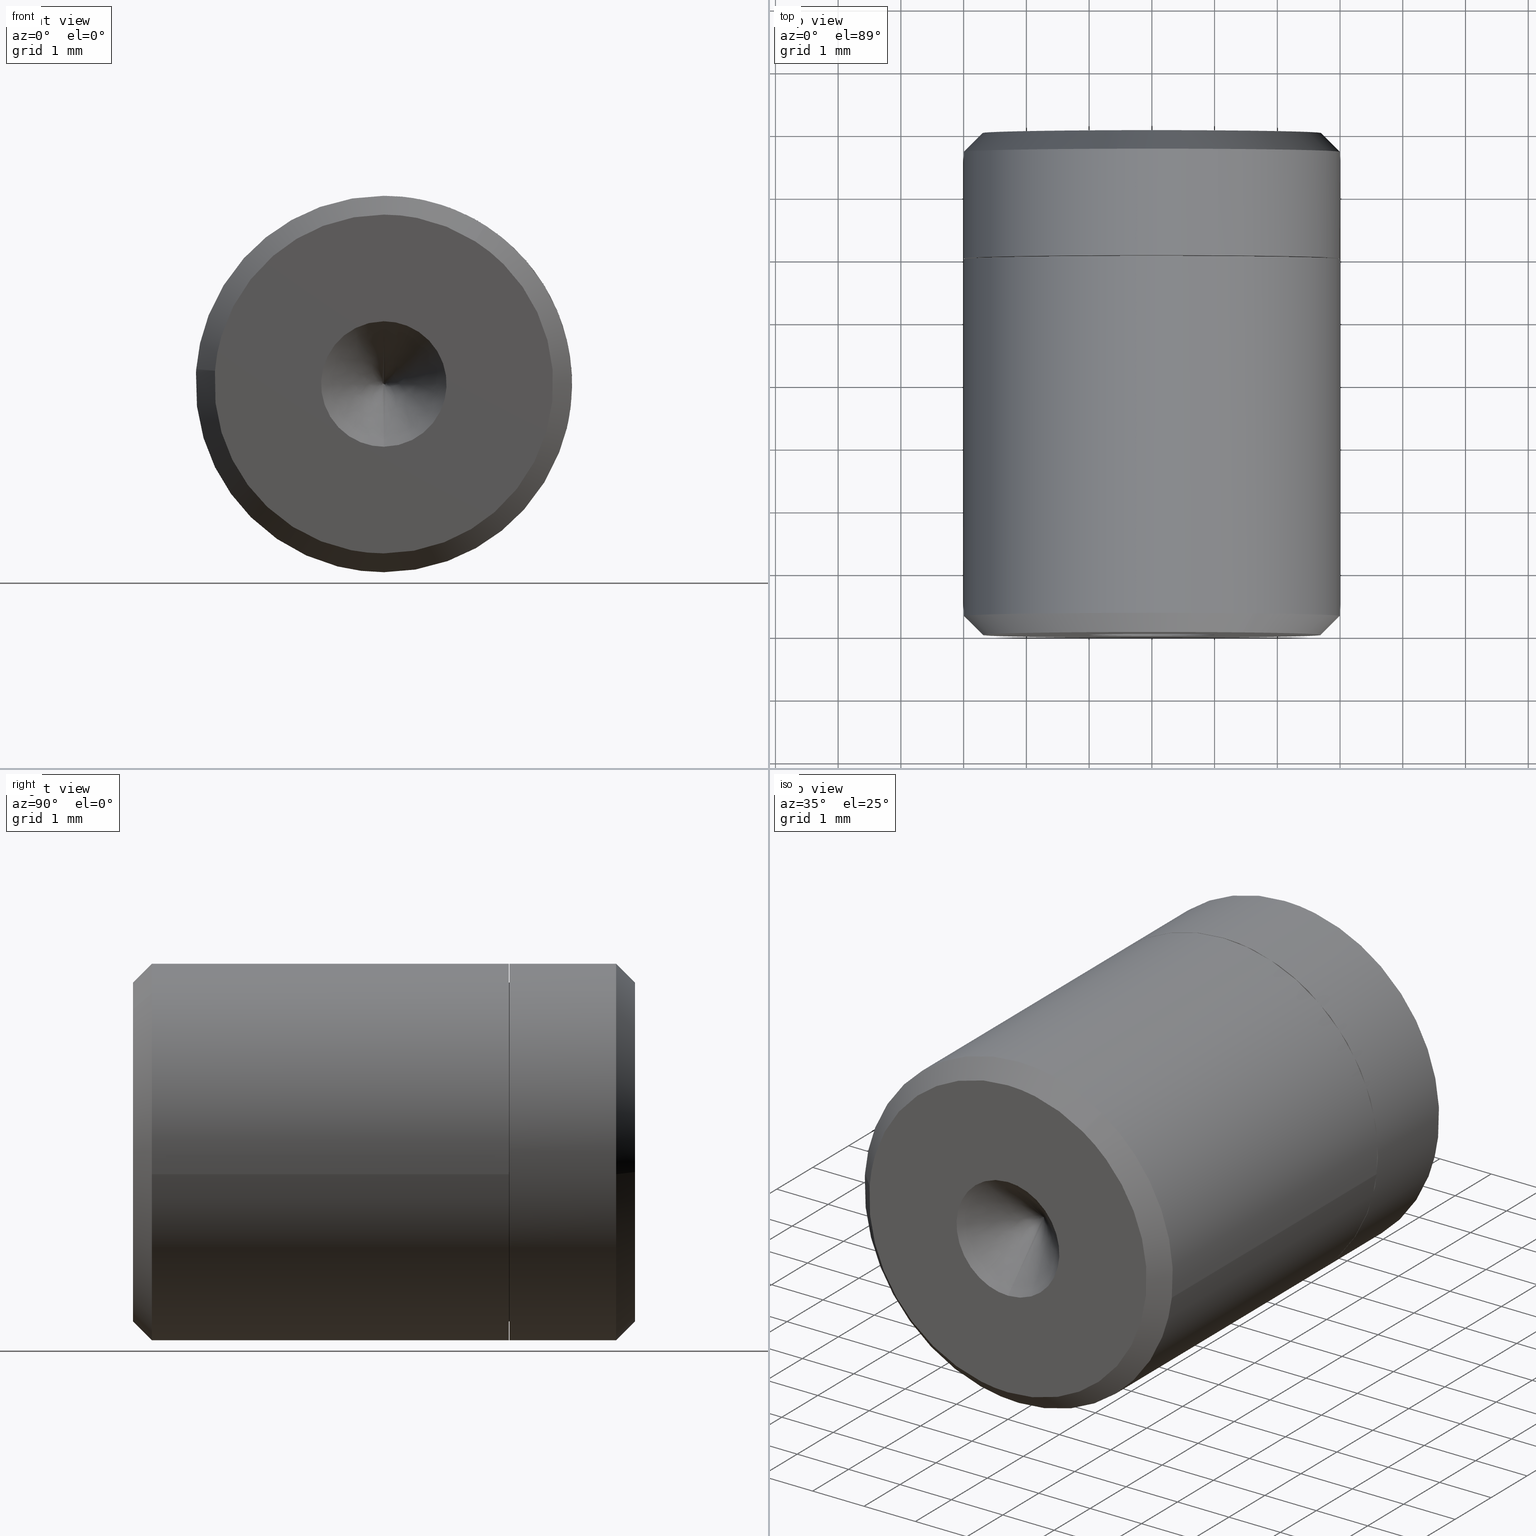
[diagram: canonical four-view strip — front | top / right | iso, engineering-drawing reading convention]
A machine part, canonical four-view strip (front | top / right | iso — engineering-drawing reading convention). The complete STEP part file that produces these views, byte-faithful:
ISO-10303-21;
HEADER;
/****************************************************************
 * Generated by software with PDE/Lib inside                    *
 * PDElib Version 4.4.1-0003, patched  Thursday August 19 11:58 *
 * International Technegroup Inc. (www.iti-oh.com)              *
 ****************************************************************/
FILE_DESCRIPTION((''),'2;1');
FILE_NAME('','2005-07-15T10:19:26',(''),(''),'','CADfix','');
FILE_SCHEMA(('AUTOMOTIVE_DESIGN'));
ENDSEC;
DATA;
#5=APPLICATION_CONTEXT('automotive design');
#6=APPLICATION_PROTOCOL_DEFINITION('Draft International Standard','automotive_design',1998,#5);
#7=PRODUCT_CONTEXT('None',#5,'mechanical');
#8=PRODUCT('body','','None',(#7));
#9=PRODUCT_RELATED_PRODUCT_CATEGORY('part','description',(#8));
#10=PRODUCT_DEFINITION_FORMATION('None','None',#8);
#11=PRODUCT_DEFINITION_CONTEXT('part definition',#5,'design');
#12=PRODUCT_DEFINITION('None','None',#10,#11);
#18=(NAMED_UNIT(*)PLANE_ANGLE_UNIT()SI_UNIT($,.RADIAN.));
#19=DIMENSIONAL_EXPONENTS(0.0,0.0,0.0,0.0,0.0,0.0,0.0);
#20=PLANE_ANGLE_MEASURE_WITH_UNIT(PLANE_ANGLE_MEASURE(0.017453292500000),#18);
#24=(CONVERSION_BASED_UNIT('DEGREE',#20)NAMED_UNIT(#19)PLANE_ANGLE_UNIT());
#28=(NAMED_UNIT(*)SI_UNIT($,.STERADIAN.)SOLID_ANGLE_UNIT());
#32=(LENGTH_UNIT()NAMED_UNIT(*)SI_UNIT(.MILLI.,.METRE.));
#34=UNCERTAINTY_MEASURE_WITH_UNIT(LENGTH_MEASURE(0.001000000000000),#32,'DISTANCE_ACCURACY_VALUE','');
#36=(GEOMETRIC_REPRESENTATION_CONTEXT(3)GLOBAL_UNCERTAINTY_ASSIGNED_CONTEXT((#34))GLOBAL_UNIT_ASSIGNED_CONTEXT((#24,#28,#32))REPRESENTATION_CONTEXT('None','None'));
#37=AXIS2_PLACEMENT_3D('',#38,#39,#40);
#38=CARTESIAN_POINT('',(0.0,0.0,0.0));
#39=DIRECTION('',(0.0,0.0,1.0));
#40=DIRECTION('',(1.0,0.0,0.0));
#41=ADVANCED_BREP_SHAPE_REPRESENTATION('',(#37,#1057),#36);
#42=PRODUCT_DEFINITION_SHAPE('','',#12);
#43=SHAPE_DEFINITION_REPRESENTATION(#42,#41);
#44=CARTESIAN_POINT('',(1.054853923174716,7.742505125000001,2.808430736329969));
#45=CARTESIAN_POINT('',(0.632968355146225,7.742505125000001,2.966892058095449));
#46=CARTESIAN_POINT('',(0.183145618604571,7.742505125000000,2.994404395265597));
#47=CARTESIAN_POINT('',(-2.811258776661029,7.742505124999999,3.177550013870170));
#48=CARTESIAN_POINT('',(-2.994404395265600,7.742505125000000,0.183145618604568));
#49=CARTESIAN_POINT('',(1.054853923174716,5.956437371874999,2.808430736329969));
#50=CARTESIAN_POINT('',(0.632968355146225,5.956437371874999,2.966892058095449));
#51=CARTESIAN_POINT('',(0.183145618604571,5.956437371874999,2.994404395265597));
#52=CARTESIAN_POINT('',(-2.811258776661029,5.956437371875000,3.177550013870170));
#53=CARTESIAN_POINT('',(-2.994404395265600,5.956437371874999,0.183145618604568));
#61=(BOUNDED_SURFACE()B_SPLINE_SURFACE(2,1,((#44,#49),(#45,#50),(#46,#51),(#47,#52),(#48,#53)),.UNSPECIFIED.,.F.,.F.,.U.)B_SPLINE_SURFACE_WITH_KNOTS((3,2,3),(2,2),(0.0,0.994112549695428,5.964675298172567),(0.0,1.0),.UNSPECIFIED.)GEOMETRIC_REPRESENTATION_ITEM()RATIONAL_B_SPLINE_SURFACE(((0.906274169979695,0.906274169979695),(0.941421356237309,0.941421356237309),(1.0,1.0),(0.707106781186548,0.707106781186548),(1.0,1.0)))REPRESENTATION_ITEM('')SURFACE());
#62=CARTESIAN_POINT('',(1.054852533849337,7.700004999999996,2.808431258163427));
#63=VERTEX_POINT('',#62);
#64=CARTESIAN_POINT('',(0.0,7.700005000000000,2.999999999999997));
#65=VERTEX_POINT('',#64);
#66=CARTESIAN_POINT('',(1.054852533849337,7.700004999999996,2.808431258163427));
#67=CARTESIAN_POINT('',(0.544821391679655,7.700005000000000,2.999999999999997));
#68=CARTESIAN_POINT('',(0.0,7.700005000000000,2.999999999999997));
#76=(BOUNDED_CURVE()B_SPLINE_CURVE(2,(#66,#67,#68),.UNSPECIFIED.,.F.,.U.)B_SPLINE_CURVE_WITH_KNOTS((3,3),(0.440284249036416,0.500000000000000),.UNSPECIFIED.)CURVE()GEOMETRIC_REPRESENTATION_ITEM()RATIONAL_B_SPLINE_CURVE((0.893499650257582,0.930038645945653,1.0))REPRESENTATION_ITEM(''));
#77=EDGE_CURVE('',#63,#65,#76,.T.);
#78=ORIENTED_EDGE('',*,*,#77,.T.);
#79=CARTESIAN_POINT('',(-2.994404395265843,7.700004999999138,0.183145618607985));
#80=VERTEX_POINT('',#79);
#81=CARTESIAN_POINT('',(0.0,7.700005000000000,2.999999999999997));
#82=CARTESIAN_POINT('',(-2.822118200704293,7.700004999999998,2.999999999999998));
#83=CARTESIAN_POINT('',(-2.994404395265843,7.700004999999138,0.183145618607985));
#91=(BOUNDED_CURVE()B_SPLINE_CURVE(2,(#81,#82,#83),.UNSPECIFIED.,.F.,.U.)B_SPLINE_CURVE_WITH_KNOTS((3,3),(0.500000000000000,0.739332962241188),.UNSPECIFIED.)CURVE()GEOMETRIC_REPRESENTATION_ITEM()RATIONAL_B_SPLINE_CURVE((1.0,0.719603993284080,0.976072041671529))REPRESENTATION_ITEM(''));
#92=EDGE_CURVE('',#65,#80,#91,.T.);
#93=ORIENTED_EDGE('',*,*,#92,.T.);
#94=CARTESIAN_POINT('',(-2.994404536972982,6.0,0.183143301679935));
#95=VERTEX_POINT('',#94);
#96=CARTESIAN_POINT('',(-2.994404395265843,7.700004999999138,0.183145618607985));
#97=CARTESIAN_POINT('',(-2.994404536972982,6.0,0.183143301679935));
#98=QUASI_UNIFORM_CURVE('',1,(#96,#97),.UNSPECIFIED.,.F.,.U.);
#99=EDGE_CURVE('',#80,#95,#98,.T.);
#100=ORIENTED_EDGE('',*,*,#99,.T.);
#101=CARTESIAN_POINT('',(0.0,6.0,2.999999999999997));
#102=VERTEX_POINT('',#101);
#103=CARTESIAN_POINT('',(0.0,6.0,2.999999999999997));
#104=CARTESIAN_POINT('',(-2.822120388416223,6.000000000000001,2.999999999999999));
#105=CARTESIAN_POINT('',(-2.994404536972982,5.999999999999999,0.183143301679935));
#113=(BOUNDED_CURVE()B_SPLINE_CURVE(2,(#103,#104,#105),.UNSPECIFIED.,.F.,.U.)B_SPLINE_CURVE_WITH_KNOTS((3,3),(0.500000000000000,0.739333095750304),.UNSPECIFIED.)CURVE()GEOMETRIC_REPRESENTATION_ITEM()RATIONAL_B_SPLINE_CURVE((1.0,0.719603836868421,0.976072327807147))REPRESENTATION_ITEM(''));
#114=EDGE_CURVE('',#102,#95,#113,.T.);
#115=ORIENTED_EDGE('',*,*,#114,.F.);
#116=CARTESIAN_POINT('',(1.054852924770753,6.0,2.808431111332702));
#117=VERTEX_POINT('',#116);
#118=CARTESIAN_POINT('',(1.054852924770753,6.0,2.808431111332702));
#119=CARTESIAN_POINT('',(0.544821607359354,6.0,2.999999999999997));
#120=CARTESIAN_POINT('',(0.0,6.0,2.999999999999997));
#128=(BOUNDED_CURVE()B_SPLINE_CURVE(2,(#118,#119,#120),.UNSPECIFIED.,.F.,.U.)B_SPLINE_CURVE_WITH_KNOTS((3,3),(0.440284227050477,0.500000000000000),.UNSPECIFIED.)CURVE()GEOMETRIC_REPRESENTATION_ITEM()RATIONAL_B_SPLINE_CURVE((0.893499623351985,0.930038620187524,1.0))REPRESENTATION_ITEM(''));
#129=EDGE_CURVE('',#117,#102,#128,.T.);
#130=ORIENTED_EDGE('',*,*,#129,.F.);
#131=CARTESIAN_POINT('',(1.054852533849337,7.700004999999996,2.808431258163427));
#132=CARTESIAN_POINT('',(1.054852924770753,6.0,2.808431111332702));
#133=QUASI_UNIFORM_CURVE('',1,(#131,#132),.UNSPECIFIED.,.F.,.U.);
#134=EDGE_CURVE('',#63,#117,#133,.T.);
#135=ORIENTED_EDGE('',*,*,#134,.F.);
#136=EDGE_LOOP('',(#78,#93,#100,#115,#130,#135));
#137=FACE_OUTER_BOUND('',#136,.T.);
#138=ADVANCED_FACE('',(#137),#61,.T.);
#139=CARTESIAN_POINT('',(-2.994404395265600,7.742505125000000,0.183145618604568));
#140=CARTESIAN_POINT('',(-3.177550013870171,7.742505124999999,-2.811258776661032));
#141=CARTESIAN_POINT('',(-0.183145618604571,7.742505125000000,-2.994404395265603));
#142=CARTESIAN_POINT('',(2.811258776661029,7.742505124999999,-3.177550013870173));
#143=CARTESIAN_POINT('',(2.994404395265600,7.742505125000000,-0.183145618604573));
#144=CARTESIAN_POINT('',(3.129711668608025,7.742505125000000,2.029108745409193));
#145=CARTESIAN_POINT('',(1.054853923174716,7.742505125000001,2.808430736329969));
#146=CARTESIAN_POINT('',(-2.994404395265600,5.956437371874999,0.183145618604568));
#147=CARTESIAN_POINT('',(-3.177550013870171,5.956437371875000,-2.811258776661032));
#148=CARTESIAN_POINT('',(-0.183145618604571,5.956437371874999,-2.994404395265603));
#149=CARTESIAN_POINT('',(2.811258776661029,5.956437371875000,-3.177550013870173));
#150=CARTESIAN_POINT('',(2.994404395265600,5.956437371874999,-0.183145618604573));
#151=CARTESIAN_POINT('',(3.129711668608025,5.956437371874999,2.029108745409193));
#152=CARTESIAN_POINT('',(1.054853923174716,5.956437371874999,2.808430736329969));
#160=(BOUNDED_SURFACE()B_SPLINE_SURFACE(2,1,((#139,#146),(#140,#147),(#141,#148),(#142,#149),(#143,#150),(#144,#151),(#145,#152)),.UNSPECIFIED.,.F.,.F.,.U.)B_SPLINE_SURFACE_WITH_KNOTS((3,2,2,3),(2,2),(0.0,4.970562748477140,9.941125496954280,13.917575695735991),(0.0,1.0),.UNSPECIFIED.)GEOMETRIC_REPRESENTATION_ITEM()RATIONAL_B_SPLINE_SURFACE(((1.0,1.0),(0.707106781186548,0.707106781186548),(1.0,1.0),(0.707106781186548,0.707106781186548),(1.0,1.0),(0.765685424949238,0.765685424949238),(0.906274169979695,0.906274169979695)))REPRESENTATION_ITEM('')SURFACE());
#161=CARTESIAN_POINT('',(2.979028579091041,7.700004999999360,-0.354102703975353));
#162=VERTEX_POINT('',#161);
#163=CARTESIAN_POINT('',(2.979028579091041,7.700004999999360,-0.354102703975353));
#164=CARTESIAN_POINT('',(3.000000000000000,7.700005000000000,-0.177672358960785));
#165=CARTESIAN_POINT('',(3.0,7.700005000000000,-2.449213E-015));
#166=CARTESIAN_POINT('',(3.0,7.700005000000000,2.077829885096408));
#167=CARTESIAN_POINT('',(1.054852533849337,7.700004999999996,2.808431258163427));
#175=(BOUNDED_CURVE()B_SPLINE_CURVE(2,(#163,#164,#165,#166,#167),.UNSPECIFIED.,.F.,.U.)B_SPLINE_CURVE_WITH_KNOTS((3,2,3),(0.229562473515077,0.250000000000000,0.440284249036416),.UNSPECIFIED.)CURVE()GEOMETRIC_REPRESENTATION_ITEM()RATIONAL_B_SPLINE_CURVE((0.956026754186774,0.976055948332983,1.0,0.777068135240895,0.893499650257582))REPRESENTATION_ITEM(''));
#176=EDGE_CURVE('',#162,#63,#175,.T.);
#177=ORIENTED_EDGE('',*,*,#176,.T.);
#178=ORIENTED_EDGE('',*,*,#134,.T.);
#179=CARTESIAN_POINT('',(0.0,6.0,-3.000000000000003));
#180=VERTEX_POINT('',#179);
#181=CARTESIAN_POINT('',(0.0,6.0,-3.000000000000003));
#182=CARTESIAN_POINT('',(3.0,6.0,-3.000000000000003));
#183=CARTESIAN_POINT('',(3.0,6.0,-2.449213E-015));
#184=CARTESIAN_POINT('',(3.0,6.0,2.077829576142970));
#185=CARTESIAN_POINT('',(1.054852924770753,6.0,2.808431111332702));
#193=(BOUNDED_CURVE()B_SPLINE_CURVE(2,(#181,#182,#183,#184,#185),.UNSPECIFIED.,.F.,.U.)B_SPLINE_CURVE_WITH_KNOTS((3,2,3),(0.0,0.250000000000000,0.440284227050477),.UNSPECIFIED.)CURVE()GEOMETRIC_REPRESENTATION_ITEM()RATIONAL_B_SPLINE_CURVE((1.0,0.707106781186548,1.0,0.777068160999023,0.893499623351985))REPRESENTATION_ITEM(''));
#194=EDGE_CURVE('',#180,#117,#193,.T.);
#195=ORIENTED_EDGE('',*,*,#194,.F.);
#196=CARTESIAN_POINT('',(-2.994404536972982,5.999999999999999,0.183143301679935));
#197=CARTESIAN_POINT('',(-3.000000000000000,6.000000000000001,0.091657128185300));
#198=CARTESIAN_POINT('',(-3.0,6.0,-2.449213E-015));
#199=CARTESIAN_POINT('',(-3.0,6.0,-3.000000000000003));
#200=CARTESIAN_POINT('',(0.0,6.0,-3.000000000000003));
#208=(BOUNDED_CURVE()B_SPLINE_CURVE(2,(#196,#197,#198,#199,#200),.UNSPECIFIED.,.F.,.U.)B_SPLINE_CURVE_WITH_KNOTS((3,2,3),(0.739333095750304,0.750000000000000,1.0),.UNSPECIFIED.)CURVE()GEOMETRIC_REPRESENTATION_ITEM()RATIONAL_B_SPLINE_CURVE((0.976072327807147,0.987502944318127,1.0,0.707106781186548,1.0))REPRESENTATION_ITEM(''));
#209=EDGE_CURVE('',#95,#180,#208,.T.);
#210=ORIENTED_EDGE('',*,*,#209,.F.);
#211=ORIENTED_EDGE('',*,*,#99,.F.);
#212=CARTESIAN_POINT('',(0.0,7.700005000000000,-3.000000000000003));
#213=VERTEX_POINT('',#212);
#214=CARTESIAN_POINT('',(-2.994404395265842,7.700004999999138,0.183145618607985));
#215=CARTESIAN_POINT('',(-3.0,7.700005000000000,0.091658289902562));
#216=CARTESIAN_POINT('',(-3.0,7.700005000000000,-2.449213E-015));
#217=CARTESIAN_POINT('',(-3.0,7.700005000000000,-3.000000000000003));
#218=CARTESIAN_POINT('',(0.0,7.700005000000000,-3.000000000000003));
#226=(BOUNDED_CURVE()B_SPLINE_CURVE(2,(#214,#215,#216,#217,#218),.UNSPECIFIED.,.F.,.U.)B_SPLINE_CURVE_WITH_KNOTS((3,2,3),(0.739332962241187,0.750000000000000,1.0),.UNSPECIFIED.)CURVE()GEOMETRIC_REPRESENTATION_ITEM()RATIONAL_B_SPLINE_CURVE((0.976072041671527,0.987502787902467,1.0,0.707106781186548,1.0))REPRESENTATION_ITEM(''));
#227=EDGE_CURVE('',#80,#213,#226,.T.);
#228=ORIENTED_EDGE('',*,*,#227,.T.);
#229=CARTESIAN_POINT('',(0.0,7.700005000000000,-3.000000000000003));
#230=CARTESIAN_POINT('',(2.664523577845097,7.700004999999999,-3.000000000000003));
#231=CARTESIAN_POINT('',(2.979028579091041,7.700004999999360,-0.354102703975353));
#239=(BOUNDED_CURVE()B_SPLINE_CURVE(2,(#229,#230,#231),.UNSPECIFIED.,.F.,.U.)B_SPLINE_CURVE_WITH_KNOTS((3,3),(0.0,0.229562473515077),.UNSPECIFIED.)CURVE()GEOMETRIC_REPRESENTATION_ITEM()RATIONAL_B_SPLINE_CURVE((1.0,0.731050832853565,0.956026754186774))REPRESENTATION_ITEM(''));
#240=EDGE_CURVE('',#213,#162,#239,.T.);
#241=ORIENTED_EDGE('',*,*,#240,.T.);
#242=EDGE_LOOP('',(#177,#178,#195,#210,#211,#228,#241));
#243=FACE_OUTER_BOUND('',#242,.T.);
#244=ADVANCED_FACE('',(#243),#160,.T.);
#245=CARTESIAN_POINT('',(2.673679167568948,8.007499875000002,-0.317807297798417));
#246=CARTESIAN_POINT('',(2.682774675892689,8.007499875000001,-0.241287748712855));
#247=CARTESIAN_POINT('',(2.687478967839057,8.007499875000001,-0.164373255272359));
#248=CARTESIAN_POINT('',(2.851852223111413,8.007499875000002,2.523105712566699));
#249=CARTESIAN_POINT('',(0.164373255272356,8.007499875000001,2.687478967839054));
#250=CARTESIAN_POINT('',(-2.523105712566701,8.007499875000002,2.851852223111412));
#251=CARTESIAN_POINT('',(-2.687478967839057,8.007499875000001,0.164373255272354));
#252=CARTESIAN_POINT('',(2.986662314379052,7.692317628124998,-0.355010089124575));
#253=CARTESIAN_POINT('',(2.996822550607147,7.692317628124998,-0.269533096843963));
#254=CARTESIAN_POINT('',(3.002077530951266,7.692317628124998,-0.183614927687879));
#255=CARTESIAN_POINT('',(3.185692458639141,7.692317628124998,2.818462603263387));
#256=CARTESIAN_POINT('',(0.183614927687876,7.692317628124998,3.002077530951263));
#257=CARTESIAN_POINT('',(-2.818462603263390,7.692317628124998,3.185692458639140));
#258=CARTESIAN_POINT('',(-3.002077530951266,7.692317628124998,0.183614927687874));
#266=(BOUNDED_SURFACE()B_SPLINE_SURFACE(2,1,((#245,#252),(#246,#253),(#247,#254),(#248,#255),(#249,#256),(#250,#257),(#251,#258)),.UNSPECIFIED.,.F.,.F.,.U.)B_SPLINE_SURFACE_WITH_KNOTS((3,2,2,3),(2,2),(0.0,0.199331990922529,5.182631763985754,10.165931537048980),(0.0,0.445737979775999),.UNSPECIFIED.)GEOMETRIC_REPRESENTATION_ITEM()RATIONAL_B_SPLINE_SURFACE(((0.977505800795127,0.977505800795127),(0.988284271247462,0.988284271247462),(1.0,1.0),(0.707106781186548,0.707106781186548),(1.0,1.0),(0.707106781186548,0.707106781186548),(1.0,1.0)))REPRESENTATION_ITEM('')SURFACE());
#267=ORIENTED_EDGE('',*,*,#176,.F.);
#268=CARTESIAN_POINT('',(2.681126714191450,7.999999999999664,-0.318692551610173));
#269=VERTEX_POINT('',#268);
#270=CARTESIAN_POINT('',(2.681126714191450,7.999999999999664,-0.318692551610173));
#271=CARTESIAN_POINT('',(2.979028579091041,7.700004999999360,-0.354102703975353));
#272=QUASI_UNIFORM_CURVE('',1,(#270,#271),.UNSPECIFIED.,.F.,.U.);
#273=EDGE_CURVE('',#269,#162,#272,.T.);
#274=ORIENTED_EDGE('',*,*,#273,.F.);
#275=CARTESIAN_POINT('',(0.0,8.0,2.700000999999998));
#276=VERTEX_POINT('',#275);
#277=CARTESIAN_POINT('',(2.681126714191450,7.999999999999664,-0.318692551610173));
#278=CARTESIAN_POINT('',(2.700001000000000,8.0,-0.159905182286955));
#279=CARTESIAN_POINT('',(2.700001000000000,8.0,-2.449213E-015));
#280=CARTESIAN_POINT('',(2.700001000000000,8.0,2.700000999999998));
#281=CARTESIAN_POINT('',(0.0,8.0,2.700000999999998));
#289=(BOUNDED_CURVE()B_SPLINE_CURVE(2,(#277,#278,#279,#280,#281),.UNSPECIFIED.,.F.,.U.)B_SPLINE_CURVE_WITH_KNOTS((3,2,3),(0.229562473515311,0.250000000000000,0.500000000000000),.UNSPECIFIED.)CURVE()GEOMETRIC_REPRESENTATION_ITEM()RATIONAL_B_SPLINE_CURVE((0.956026754187232,0.976055948333256,1.0,0.707106781186548,1.0))REPRESENTATION_ITEM(''));
#290=EDGE_CURVE('',#269,#276,#289,.T.);
#291=ORIENTED_EDGE('',*,*,#290,.T.);
#292=CARTESIAN_POINT('',(-2.694964841242808,8.000000118294054,0.164831021563064));
#293=VERTEX_POINT('',#292);
#294=CARTESIAN_POINT('',(0.0,8.0,2.700000999999998));
#295=CARTESIAN_POINT('',(-2.539907489438265,8.0,2.700000999999997));
#296=CARTESIAN_POINT('',(-2.694964841242809,8.000000118294054,0.164831021563064));
#304=(BOUNDED_CURVE()B_SPLINE_CURVE(2,(#294,#295,#296),.UNSPECIFIED.,.F.,.U.)B_SPLINE_CURVE_WITH_KNOTS((3,3),(0.500000000000000,0.739332973639528),.UNSPECIFIED.)CURVE()GEOMETRIC_REPRESENTATION_ITEM()RATIONAL_B_SPLINE_CURVE((1.0,0.719603979930094,0.976072066100343))REPRESENTATION_ITEM(''));
#305=EDGE_CURVE('',#276,#293,#304,.T.);
#306=ORIENTED_EDGE('',*,*,#305,.T.);
#307=CARTESIAN_POINT('',(-2.694964841242808,8.000000118294054,0.164831021563064));
#308=CARTESIAN_POINT('',(-2.994404395265843,7.700004999999138,0.183145618607985));
#309=QUASI_UNIFORM_CURVE('',1,(#307,#308),.UNSPECIFIED.,.F.,.U.);
#310=EDGE_CURVE('',#293,#80,#309,.T.);
#311=ORIENTED_EDGE('',*,*,#310,.T.);
#312=ORIENTED_EDGE('',*,*,#92,.F.);
#313=ORIENTED_EDGE('',*,*,#77,.F.);
#314=EDGE_LOOP('',(#267,#274,#291,#306,#311,#312,#313));
#315=FACE_OUTER_BOUND('',#314,.T.);
#316=ADVANCED_FACE('',(#315),#266,.T.);
#317=CARTESIAN_POINT('',(-2.687478967839057,8.007499875000001,0.164373255272354));
#318=CARTESIAN_POINT('',(-2.851852223111413,8.007499875000002,-2.523105712566703));
#319=CARTESIAN_POINT('',(-0.164373255272356,8.007499875000001,-2.687478967839060));
#320=CARTESIAN_POINT('',(2.373556752667446,8.007499874999999,-2.842705416883197));
#321=CARTESIAN_POINT('',(2.673679167568948,8.007499875000002,-0.317807297798417));
#322=CARTESIAN_POINT('',(-3.002077530951266,7.692317628124998,0.183614927687874));
#323=CARTESIAN_POINT('',(-3.185692458639141,7.692317628124998,-2.818462603263391));
#324=CARTESIAN_POINT('',(-0.183614927687876,7.692317628124998,-3.002077530951268));
#325=CARTESIAN_POINT('',(2.651407315514781,7.692317628124999,-3.175474919530447));
#326=CARTESIAN_POINT('',(2.986662314379052,7.692317628124998,-0.355010089124575));
#334=(BOUNDED_SURFACE()B_SPLINE_SURFACE(2,1,((#317,#322),(#318,#323),(#319,#324),(#320,#325),(#321,#326)),.UNSPECIFIED.,.F.,.F.,.U.)B_SPLINE_SURFACE_WITH_KNOTS((3,2,3),(2,2),(0.0,4.983299773063225,9.767267555203921),(0.0,0.445737979775999),.UNSPECIFIED.)GEOMETRIC_REPRESENTATION_ITEM()RATIONAL_B_SPLINE_SURFACE(((1.0,1.0),(0.707106781186548,0.707106781186548),(1.0,1.0),(0.718822509939086,0.718822509939086),(0.977505800795127,0.977505800795127)))REPRESENTATION_ITEM('')SURFACE());
#335=ORIENTED_EDGE('',*,*,#240,.F.);
#336=ORIENTED_EDGE('',*,*,#227,.F.);
#337=ORIENTED_EDGE('',*,*,#310,.F.);
#338=CARTESIAN_POINT('',(0.0,8.0,-2.700001000000003));
#339=VERTEX_POINT('',#338);
#340=CARTESIAN_POINT('',(-2.694964841242808,8.000000118294054,0.164831021563064));
#341=CARTESIAN_POINT('',(-2.700000999999999,8.000000000000002,0.082492402201570));
#342=CARTESIAN_POINT('',(-2.700001000000000,8.0,-2.449213E-015));
#343=CARTESIAN_POINT('',(-2.700001000000000,8.0,-2.700001000000003));
#344=CARTESIAN_POINT('',(0.0,8.0,-2.700001000000003));
#352=(BOUNDED_CURVE()B_SPLINE_CURVE(2,(#340,#341,#342,#343,#344),.UNSPECIFIED.,.F.,.U.)B_SPLINE_CURVE_WITH_KNOTS((3,2,3),(0.739332973639528,0.750000000000000,1.0),.UNSPECIFIED.)CURVE()GEOMETRIC_REPRESENTATION_ITEM()RATIONAL_B_SPLINE_CURVE((0.976072066100344,0.987502801256454,1.0,0.707106781186548,1.0))REPRESENTATION_ITEM(''));
#353=EDGE_CURVE('',#293,#339,#352,.T.);
#354=ORIENTED_EDGE('',*,*,#353,.T.);
#355=CARTESIAN_POINT('',(0.0,8.0,-2.700001000000003));
#356=CARTESIAN_POINT('',(2.398072108238451,8.0,-2.700001000000003));
#357=CARTESIAN_POINT('',(2.681126714191450,7.999999999999664,-0.318692551610173));
#365=(BOUNDED_CURVE()B_SPLINE_CURVE(2,(#355,#356,#357),.UNSPECIFIED.,.F.,.U.)B_SPLINE_CURVE_WITH_KNOTS((3,3),(0.0,0.229562473515311),.UNSPECIFIED.)CURVE()GEOMETRIC_REPRESENTATION_ITEM()RATIONAL_B_SPLINE_CURVE((1.0,0.731050832853291,0.956026754187232))REPRESENTATION_ITEM(''));
#366=EDGE_CURVE('',#339,#269,#365,.T.);
#367=ORIENTED_EDGE('',*,*,#366,.T.);
#368=ORIENTED_EDGE('',*,*,#273,.T.);
#369=EDGE_LOOP('',(#335,#336,#337,#354,#367,#368));
#370=FACE_OUTER_BOUND('',#369,.T.);
#371=ADVANCED_FACE('',(#370),#334,.T.);
#372=CARTESIAN_POINT('',(2.681126714191425,6.000250000000002,-0.318692551607485));
#373=CARTESIAN_POINT('',(2.690247558098850,6.000250000000002,-0.241959856937271));
#374=CARTESIAN_POINT('',(2.694964953873838,6.000250000000001,-0.164831117792656));
#375=CARTESIAN_POINT('',(2.859796071666491,6.000250000000001,2.530133836081183));
#376=CARTESIAN_POINT('',(0.164831117792653,6.000250000000001,2.694964953873836));
#377=CARTESIAN_POINT('',(-2.530133836081185,6.000250000000001,2.859796071666490));
#378=CARTESIAN_POINT('',(-2.694964953873838,6.000250000000001,0.164831117792651));
#379=CARTESIAN_POINT('',(2.681126714191425,5.989743750000000,-0.318692551607485));
#380=CARTESIAN_POINT('',(2.690247558098850,5.989743750000000,-0.241959856937271));
#381=CARTESIAN_POINT('',(2.694964953873838,5.989743749999999,-0.164831117792656));
#382=CARTESIAN_POINT('',(2.859796071666491,5.989743749999999,2.530133836081183));
#383=CARTESIAN_POINT('',(0.164831117792653,5.989743749999999,2.694964953873836));
#384=CARTESIAN_POINT('',(-2.530133836081185,5.989743749999999,2.859796071666490));
#385=CARTESIAN_POINT('',(-2.694964953873838,5.989743749999999,0.164831117792651));
#393=(BOUNDED_SURFACE()B_SPLINE_SURFACE(2,1,((#372,#379),(#373,#380),(#374,#381),(#375,#382),(#376,#383),(#377,#384),(#378,#385)),.UNSPECIFIED.,.F.,.F.,.U.)B_SPLINE_SURFACE_WITH_KNOTS((3,2,2,3),(2,2),(0.0,0.178940325219347,4.652448455703022,9.125956586186698),(0.0,0.010506250000003),.UNSPECIFIED.)GEOMETRIC_REPRESENTATION_ITEM()RATIONAL_B_SPLINE_SURFACE(((0.977505800795127,0.977505800795127),(0.988284271247462,0.988284271247462),(1.0,1.0),(0.707106781186548,0.707106781186548),(1.0,1.0),(0.707106781186548,0.707106781186548),(1.0,1.0)))REPRESENTATION_ITEM('')SURFACE());
#394=CARTESIAN_POINT('',(2.681126876235128,5.999999999998943,-0.318691188345044));
#395=VERTEX_POINT('',#394);
#396=CARTESIAN_POINT('',(0.0,6.0,2.700000999999998));
#397=VERTEX_POINT('',#396);
#398=CARTESIAN_POINT('',(2.681126876235129,5.999999999998943,-0.318691188345044));
#399=CARTESIAN_POINT('',(2.700001000000000,6.0,-0.159904493446993));
#400=CARTESIAN_POINT('',(2.700001000000000,6.0,-2.449213E-015));
#401=CARTESIAN_POINT('',(2.700001000000000,6.0,2.700000999999998));
#402=CARTESIAN_POINT('',(0.0,6.0,2.700000999999998));
#410=(BOUNDED_CURVE()B_SPLINE_CURVE(2,(#398,#399,#400,#401,#402),.UNSPECIFIED.,.F.,.U.)B_SPLINE_CURVE_WITH_KNOTS((3,2,3),(0.229562559448095,0.250000000000000,0.500000000000000),.UNSPECIFIED.)CURVE()GEOMETRIC_REPRESENTATION_ITEM()RATIONAL_B_SPLINE_CURVE((0.956026922619075,0.976056049009776,1.0,0.707106781186548,1.0))REPRESENTATION_ITEM(''));
#411=EDGE_CURVE('',#395,#397,#410,.T.);
#412=ORIENTED_EDGE('',*,*,#411,.T.);
#413=CARTESIAN_POINT('',(-2.694964959406256,5.999999999999994,0.164831027338374));
#414=VERTEX_POINT('',#413);
#415=CARTESIAN_POINT('',(0.0,6.0,2.700000999999998));
#416=CARTESIAN_POINT('',(-2.539907492169861,6.000000000000001,2.700000999999997));
#417=CARTESIAN_POINT('',(-2.694964959406256,5.999999999999994,0.164831027338374));
#425=(BOUNDED_CURVE()B_SPLINE_CURVE(2,(#415,#416,#417),.UNSPECIFIED.,.F.,.U.)B_SPLINE_CURVE_WITH_KNOTS((3,3),(0.500000000000000,0.739332973824751),.UNSPECIFIED.)CURVE()GEOMETRIC_REPRESENTATION_ITEM()RATIONAL_B_SPLINE_CURVE((1.0,0.719603979713092,0.976072066497311))REPRESENTATION_ITEM(''));
#426=EDGE_CURVE('',#397,#414,#425,.T.);
#427=ORIENTED_EDGE('',*,*,#426,.T.);
#428=CARTESIAN_POINT('',(-2.694964959339676,5.989999999999999,0.164831028426948));
#429=VERTEX_POINT('',#428);
#430=CARTESIAN_POINT('',(-2.694964959406256,5.999999999999994,0.164831027338374));
#431=CARTESIAN_POINT('',(-2.694964959339676,5.989999999999999,0.164831028426948));
#432=QUASI_UNIFORM_CURVE('',1,(#430,#431),.UNSPECIFIED.,.F.,.U.);
#433=EDGE_CURVE('',#414,#429,#432,.T.);
#434=ORIENTED_EDGE('',*,*,#433,.T.);
#435=CARTESIAN_POINT('',(0.0,5.989999999999999,2.700000999999998));
#436=VERTEX_POINT('',#435);
#437=CARTESIAN_POINT('',(0.0,5.989999999999999,2.700000999999998));
#438=CARTESIAN_POINT('',(-2.539907490114115,5.989999999999998,2.700000999999998));
#439=CARTESIAN_POINT('',(-2.694964959339677,5.989999999999999,0.164831028426948));
#447=(BOUNDED_CURVE()B_SPLINE_CURVE(2,(#437,#438,#439),.UNSPECIFIED.,.F.,.U.)B_SPLINE_CURVE_WITH_KNOTS((3,3),(0.500000000000000,0.739332973685356),.UNSPECIFIED.)CURVE()GEOMETRIC_REPRESENTATION_ITEM()RATIONAL_B_SPLINE_CURVE((1.0,0.719603979876404,0.976072066198560))REPRESENTATION_ITEM(''));
#448=EDGE_CURVE('',#436,#429,#447,.T.);
#449=ORIENTED_EDGE('',*,*,#448,.F.);
#450=CARTESIAN_POINT('',(2.681126874284161,5.989999999999998,-0.318691204758466));
#451=VERTEX_POINT('',#450);
#452=CARTESIAN_POINT('',(2.681126874284162,5.989999999999998,-0.318691204758466));
#453=CARTESIAN_POINT('',(2.700001000000000,5.989999999999999,-0.159904501740463));
#454=CARTESIAN_POINT('',(2.700001000000000,5.989999999999999,-2.449213E-015));
#455=CARTESIAN_POINT('',(2.700001000000000,5.989999999999998,2.700000999999998));
#456=CARTESIAN_POINT('',(0.0,5.989999999999999,2.700000999999998));
#464=(BOUNDED_CURVE()B_SPLINE_CURVE(2,(#452,#453,#454,#455,#456),.UNSPECIFIED.,.F.,.U.)B_SPLINE_CURVE_WITH_KNOTS((3,2,3),(0.229562558413485,0.250000000000000,0.500000000000000),.UNSPECIFIED.)CURVE()GEOMETRIC_REPRESENTATION_ITEM()RATIONAL_B_SPLINE_CURVE((0.956026920591195,0.976056047797654,1.0,0.707106781186548,1.0))REPRESENTATION_ITEM(''));
#465=EDGE_CURVE('',#451,#436,#464,.T.);
#466=ORIENTED_EDGE('',*,*,#465,.F.);
#467=CARTESIAN_POINT('',(2.681126876235128,5.999999999998943,-0.318691188345044));
#468=CARTESIAN_POINT('',(2.681126874284161,5.989999999999998,-0.318691204758466));
#469=QUASI_UNIFORM_CURVE('',1,(#467,#468),.UNSPECIFIED.,.F.,.U.);
#470=EDGE_CURVE('',#395,#451,#469,.T.);
#471=ORIENTED_EDGE('',*,*,#470,.F.);
#472=EDGE_LOOP('',(#412,#427,#434,#449,#466,#471));
#473=FACE_OUTER_BOUND('',#472,.T.);
#474=ADVANCED_FACE('',(#473),#393,.T.);
#475=CARTESIAN_POINT('',(-2.694964953873838,6.000250000000001,0.164831117792651));
#476=CARTESIAN_POINT('',(-2.859796071666491,6.000250000000001,-2.530133836081187));
#477=CARTESIAN_POINT('',(-0.164831117792653,6.000250000000001,-2.694964953873841));
#478=CARTESIAN_POINT('',(2.380168306810143,6.000250000000000,-2.850623786964022));
#479=CARTESIAN_POINT('',(2.681126714191425,6.000250000000002,-0.318692551607485));
#480=CARTESIAN_POINT('',(-2.694964953873838,5.989743749999999,0.164831117792651));
#481=CARTESIAN_POINT('',(-2.859796071666491,5.989743749999999,-2.530133836081187));
#482=CARTESIAN_POINT('',(-0.164831117792653,5.989743749999999,-2.694964953873841));
#483=CARTESIAN_POINT('',(2.380168306810143,5.989743749999999,-2.850623786964022));
#484=CARTESIAN_POINT('',(2.681126714191425,5.989743750000000,-0.318692551607485));
#492=(BOUNDED_SURFACE()B_SPLINE_SURFACE(2,1,((#475,#480),(#476,#481),(#477,#482),(#478,#483),(#479,#484)),.UNSPECIFIED.,.F.,.F.,.U.)B_SPLINE_SURFACE_WITH_KNOTS((3,2,3),(2,2),(0.0,4.473508130483675,8.768075935748003),(0.0,0.010506250000003),.UNSPECIFIED.)GEOMETRIC_REPRESENTATION_ITEM()RATIONAL_B_SPLINE_SURFACE(((1.0,1.0),(0.707106781186548,0.707106781186548),(1.0,1.0),(0.718822509939086,0.718822509939086),(0.977505800795127,0.977505800795127)))REPRESENTATION_ITEM('')SURFACE());
#493=CARTESIAN_POINT('',(0.0,6.0,-2.700001000000003));
#494=VERTEX_POINT('',#493);
#495=CARTESIAN_POINT('',(0.0,6.0,-2.700001000000003));
#496=CARTESIAN_POINT('',(2.398073336165910,6.0,-2.700001000000002));
#497=CARTESIAN_POINT('',(2.681126876235129,5.999999999998943,-0.318691188345044));
#505=(BOUNDED_CURVE()B_SPLINE_CURVE(2,(#495,#496,#497),.UNSPECIFIED.,.F.,.U.)B_SPLINE_CURVE_WITH_KNOTS((3,3),(0.0,0.229562559448095),.UNSPECIFIED.)CURVE()GEOMETRIC_REPRESENTATION_ITEM()RATIONAL_B_SPLINE_CURVE((1.0,0.731050732176772,0.956026922619075))REPRESENTATION_ITEM(''));
#506=EDGE_CURVE('',#494,#395,#505,.T.);
#507=ORIENTED_EDGE('',*,*,#506,.T.);
#508=ORIENTED_EDGE('',*,*,#470,.T.);
#509=CARTESIAN_POINT('',(0.0,5.989999999999999,-2.700001000000003));
#510=VERTEX_POINT('',#509);
#511=CARTESIAN_POINT('',(0.0,5.989999999999999,-2.700001000000003));
#512=CARTESIAN_POINT('',(2.398073321381948,5.989999999999999,-2.700001000000003));
#513=CARTESIAN_POINT('',(2.681126874284162,5.989999999999998,-0.318691204758466));
#521=(BOUNDED_CURVE()B_SPLINE_CURVE(2,(#511,#512,#513),.UNSPECIFIED.,.F.,.U.)B_SPLINE_CURVE_WITH_KNOTS((3,3),(0.0,0.229562558413485),.UNSPECIFIED.)CURVE()GEOMETRIC_REPRESENTATION_ITEM()RATIONAL_B_SPLINE_CURVE((1.0,0.731050733388893,0.956026920591195))REPRESENTATION_ITEM(''));
#522=EDGE_CURVE('',#510,#451,#521,.T.);
#523=ORIENTED_EDGE('',*,*,#522,.F.);
#524=CARTESIAN_POINT('',(-2.694964959339677,5.989999999999999,0.164831028426948));
#525=CARTESIAN_POINT('',(-2.700001000000000,5.989999999999999,0.082492401842676));
#526=CARTESIAN_POINT('',(-2.700001000000000,5.989999999999999,-2.449213E-015));
#527=CARTESIAN_POINT('',(-2.700001000000000,5.989999999999998,-2.700001000000003));
#528=CARTESIAN_POINT('',(0.0,5.989999999999999,-2.700001000000003));
#536=(BOUNDED_CURVE()B_SPLINE_CURVE(2,(#524,#525,#526,#527,#528),.UNSPECIFIED.,.F.,.U.)B_SPLINE_CURVE_WITH_KNOTS((3,2,3),(0.739332973685357,0.750000000000000,1.0),.UNSPECIFIED.)CURVE()GEOMETRIC_REPRESENTATION_ITEM()RATIONAL_B_SPLINE_CURVE((0.976072066198562,0.987502801310145,1.0,0.707106781186548,1.0))REPRESENTATION_ITEM(''));
#537=EDGE_CURVE('',#429,#510,#536,.T.);
#538=ORIENTED_EDGE('',*,*,#537,.F.);
#539=ORIENTED_EDGE('',*,*,#433,.F.);
#540=CARTESIAN_POINT('',(-2.694964959406257,5.999999999999994,0.164831027338374));
#541=CARTESIAN_POINT('',(-2.700001000000000,6.000000000000001,0.082492400751049));
#542=CARTESIAN_POINT('',(-2.700001000000000,6.0,-2.449213E-015));
#543=CARTESIAN_POINT('',(-2.700001000000000,6.0,-2.700001000000003));
#544=CARTESIAN_POINT('',(0.0,6.0,-2.700001000000003));
#552=(BOUNDED_CURVE()B_SPLINE_CURVE(2,(#540,#541,#542,#543,#544),.UNSPECIFIED.,.F.,.U.)B_SPLINE_CURVE_WITH_KNOTS((3,2,3),(0.739332973824750,0.750000000000000,1.0),.UNSPECIFIED.)CURVE()GEOMETRIC_REPRESENTATION_ITEM()RATIONAL_B_SPLINE_CURVE((0.976072066497309,0.987502801473455,1.0,0.707106781186548,1.0))REPRESENTATION_ITEM(''));
#553=EDGE_CURVE('',#414,#494,#552,.T.);
#554=ORIENTED_EDGE('',*,*,#553,.T.);
#555=EDGE_LOOP('',(#507,#508,#523,#538,#539,#554));
#556=FACE_OUTER_BOUND('',#555,.T.);
#557=ADVANCED_FACE('',(#556),#492,.T.);
#558=CARTESIAN_POINT('',(1.448163812650967,-0.007500075000000,2.269886195683443));
#559=CARTESIAN_POINT('',(2.811039513938992,-0.007500075000000,1.400385656185087));
#560=CARTESIAN_POINT('',(2.684200942916714,-0.007500075000000,-0.211251195667800));
#561=CARTESIAN_POINT('',(2.472949747248917,-0.007500075000000,-2.895452138584514));
#562=CARTESIAN_POINT('',(-0.211251195667797,-0.007500075000000,-2.684200942916716));
#563=CARTESIAN_POINT('',(-2.895452138584511,-0.007500075000000,-2.472949747248920));
#564=CARTESIAN_POINT('',(-2.684200942916714,-0.007500075000000,0.211251195667795));
#565=CARTESIAN_POINT('',(1.617687094530802,0.307690576874989,2.535600995365938));
#566=CARTESIAN_POINT('',(3.140102179180226,0.307690576874989,1.564315986621509));
#567=CARTESIAN_POINT('',(2.998415777656450,0.307690576874989,-0.235980439471433));
#568=CARTESIAN_POINT('',(2.762435338185019,0.307690576874989,-3.234396217127883));
#569=CARTESIAN_POINT('',(-0.235980439471430,0.307690576874989,-2.998415777656452));
#570=CARTESIAN_POINT('',(-3.234396217127880,0.307690576874989,-2.762435338185022));
#571=CARTESIAN_POINT('',(-2.998415777656450,0.307690576874989,0.235980439471428));
#579=(BOUNDED_SURFACE()B_SPLINE_SURFACE(2,1,((#558,#565),(#559,#566),(#560,#567),(#561,#568),(#562,#569),(#563,#570),(#564,#571)),.UNSPECIFIED.,.F.,.F.,.U.)B_SPLINE_SURFACE_WITH_KNOTS((3,2,2,3),(2,2),(0.0,3.388643845682990,8.371943618746213,13.355243391809431),(0.0,0.445743923008491),.UNSPECIFIED.)GEOMETRIC_REPRESENTATION_ITEM()RATIONAL_B_SPLINE_SURFACE(((0.872532871172386,0.872532871172386),(0.800832611206852,0.800832611206852),(1.0,1.0),(0.707106781186548,0.707106781186548),(1.0,1.0),(0.707106781186548,0.707106781186548),(1.0,1.0)))REPRESENTATION_ITEM('')SURFACE());
#580=CARTESIAN_POINT('',(2.979028813713615,0.300002999999990,-0.354100730103881));
#581=VERTEX_POINT('',#580);
#582=CARTESIAN_POINT('',(1.613552380340769,0.300003000000120,2.529120146591974));
#583=VERTEX_POINT('',#582);
#584=CARTESIAN_POINT('',(2.979028813713615,0.300002999999990,-0.354100730103881));
#585=CARTESIAN_POINT('',(3.000000000000000,0.300002999999989,-0.177671361588901));
#586=CARTESIAN_POINT('',(3.0,0.300002999999989,-2.449213E-015));
#587=CARTESIAN_POINT('',(3.000000000000000,0.300002999999989,1.644580968040915));
#588=CARTESIAN_POINT('',(1.613552380340768,0.300003000000120,2.529120146591973));
#596=(BOUNDED_CURVE()B_SPLINE_CURVE(2,(#584,#585,#586,#587,#588),.UNSPECIFIED.,.F.,.U.)B_SPLINE_CURVE_WITH_KNOTS((3,2,3),(0.229562585495049,0.250000000000000,0.407950112627318),.UNSPECIFIED.)CURVE()GEOMETRIC_REPRESENTATION_ITEM()RATIONAL_B_SPLINE_CURVE((0.956026973672220,0.976056079525681,1.0,0.814949932402550,0.863729296954780))REPRESENTATION_ITEM(''));
#597=EDGE_CURVE('',#581,#583,#596,.T.);
#598=ORIENTED_EDGE('',*,*,#597,.T.);
#599=CARTESIAN_POINT('',(1.452197680157885,1.408836E-013,2.276208974972598));
#600=VERTEX_POINT('',#599);
#601=CARTESIAN_POINT('',(1.452197680157885,1.408836E-013,2.276208974972598));
#602=CARTESIAN_POINT('',(1.613552380340769,0.300003000000120,2.529120146591974));
#603=QUASI_UNIFORM_CURVE('',1,(#601,#602),.UNSPECIFIED.,.F.,.U.);
#604=EDGE_CURVE('',#600,#583,#603,.T.);
#605=ORIENTED_EDGE('',*,*,#604,.F.);
#606=CARTESIAN_POINT('',(0.0,-4.959658E-016,-2.700001000000003));
#607=VERTEX_POINT('',#606);
#608=CARTESIAN_POINT('',(0.0,-4.959658E-016,-2.700001000000003));
#609=CARTESIAN_POINT('',(2.700001000000000,-4.959658E-016,-2.700001000000003));
#610=CARTESIAN_POINT('',(2.700001000000000,-4.959658E-016,-2.449213E-015));
#611=CARTESIAN_POINT('',(2.700001000000000,-4.959658E-016,1.480123419429880));
#612=CARTESIAN_POINT('',(1.452197680157885,1.408836E-013,2.276208974972599));
#620=(BOUNDED_CURVE()B_SPLINE_CURVE(2,(#608,#609,#610,#611,#612),.UNSPECIFIED.,.F.,.U.)B_SPLINE_CURVE_WITH_KNOTS((3,2,3),(0.0,0.250000000000000,0.407950112627266),.UNSPECIFIED.)CURVE()GEOMETRIC_REPRESENTATION_ITEM()RATIONAL_B_SPLINE_CURVE((1.0,0.707106781186548,1.0,0.814949932402611,0.863729296954748))REPRESENTATION_ITEM(''));
#621=EDGE_CURVE('',#607,#600,#620,.T.);
#622=ORIENTED_EDGE('',*,*,#621,.F.);
#623=CARTESIAN_POINT('',(-2.691677797996921,3.563548E-013,0.211839636927013));
#624=VERTEX_POINT('',#623);
#625=CARTESIAN_POINT('',(-2.691677797996921,3.563548E-013,0.211839636927013));
#626=CARTESIAN_POINT('',(-2.700000999999999,-4.959658E-016,0.106083328213535));
#627=CARTESIAN_POINT('',(-2.700001000000000,-4.959658E-016,-2.449213E-015));
#628=CARTESIAN_POINT('',(-2.700001000000000,-4.959658E-016,-2.700001000000003));
#629=CARTESIAN_POINT('',(0.0,-4.959658E-016,-2.700001000000003));
#637=(BOUNDED_CURVE()B_SPLINE_CURVE(2,(#625,#626,#627,#628,#629),.UNSPECIFIED.,.F.,.U.)B_SPLINE_CURVE_WITH_KNOTS((3,2,3),(0.736331300632422,0.750000000000000,1.0),.UNSPECIFIED.)CURVE()GEOMETRIC_REPRESENTATION_ITEM()RATIONAL_B_SPLINE_CURVE((0.969723356171095,0.983986122580946,1.0,0.707106781186548,1.0))REPRESENTATION_ITEM(''));
#638=EDGE_CURVE('',#624,#607,#637,.T.);
#639=ORIENTED_EDGE('',*,*,#638,.F.);
#640=CARTESIAN_POINT('',(-2.990751666387796,0.300002643337939,0.235376995594097));
#641=VERTEX_POINT('',#640);
#642=CARTESIAN_POINT('',(-2.691677797996921,3.563548E-013,0.211839636927013));
#643=CARTESIAN_POINT('',(-2.990751666387796,0.300002643337939,0.235376995594097));
#644=QUASI_UNIFORM_CURVE('',1,(#642,#643),.UNSPECIFIED.,.F.,.U.);
#645=EDGE_CURVE('',#624,#641,#644,.T.);
#646=ORIENTED_EDGE('',*,*,#645,.T.);
#647=CARTESIAN_POINT('',(-2.994404538743613,0.300002999999987,0.183143272729639));
#648=VERTEX_POINT('',#647);
#649=CARTESIAN_POINT('',(-2.990751666387797,0.300002643337939,0.235376995594097));
#650=CARTESIAN_POINT('',(-2.992806216015756,0.300002999999989,0.209275954329701));
#651=CARTESIAN_POINT('',(-2.994404538743613,0.300002999999987,0.183143272729639));
#659=(BOUNDED_CURVE()B_SPLINE_CURVE(2,(#649,#650,#651),.UNSPECIFIED.,.F.,.U.)B_SPLINE_CURVE_WITH_KNOTS((3,3),(0.736331330851654,0.739333097418510),.UNSPECIFIED.)CURVE()GEOMETRIC_REPRESENTATION_ITEM()RATIONAL_B_SPLINE_CURVE((0.969723419236336,0.972855648999367,0.976072331382433))REPRESENTATION_ITEM(''));
#660=EDGE_CURVE('',#641,#648,#659,.T.);
#661=ORIENTED_EDGE('',*,*,#660,.T.);
#662=CARTESIAN_POINT('',(0.0,0.300002999999989,-3.000000000000003));
#663=VERTEX_POINT('',#662);
#664=CARTESIAN_POINT('',(-2.994404538743613,0.300002999999987,0.183143272729639));
#665=CARTESIAN_POINT('',(-3.000000000000000,0.300002999999989,0.091657113669568));
#666=CARTESIAN_POINT('',(-3.0,0.300002999999989,-2.449213E-015));
#667=CARTESIAN_POINT('',(-3.0,0.300002999999989,-3.000000000000003));
#668=CARTESIAN_POINT('',(0.0,0.300002999999989,-3.000000000000003));
#676=(BOUNDED_CURVE()B_SPLINE_CURVE(2,(#664,#665,#666,#667,#668),.UNSPECIFIED.,.F.,.U.)B_SPLINE_CURVE_WITH_KNOTS((3,2,3),(0.739333097418510,0.750000000000000,1.0),.UNSPECIFIED.)CURVE()GEOMETRIC_REPRESENTATION_ITEM()RATIONAL_B_SPLINE_CURVE((0.976072331382433,0.987502946272551,1.0,0.707106781186548,1.0))REPRESENTATION_ITEM(''));
#677=EDGE_CURVE('',#648,#663,#676,.T.);
#678=ORIENTED_EDGE('',*,*,#677,.T.);
#679=CARTESIAN_POINT('',(0.0,0.300002999999989,-3.000000000000003));
#680=CARTESIAN_POINT('',(2.664525355762294,0.300002999999989,-3.000000000000003));
#681=CARTESIAN_POINT('',(2.979028813713615,0.300002999999990,-0.354100730103881));
#689=(BOUNDED_CURVE()B_SPLINE_CURVE(2,(#679,#680,#681),.UNSPECIFIED.,.F.,.U.)B_SPLINE_CURVE_WITH_KNOTS((3,3),(0.0,0.229562585495049),.UNSPECIFIED.)CURVE()GEOMETRIC_REPRESENTATION_ITEM()RATIONAL_B_SPLINE_CURVE((1.0,0.731050701660866,0.956026973672220))REPRESENTATION_ITEM(''));
#690=EDGE_CURVE('',#663,#581,#689,.T.);
#691=ORIENTED_EDGE('',*,*,#690,.T.);
#692=EDGE_LOOP('',(#598,#605,#622,#639,#646,#661,#678,#691));
#693=FACE_OUTER_BOUND('',#692,.T.);
#694=ADVANCED_FACE('',(#693),#579,.T.);
#695=CARTESIAN_POINT('',(-2.684200942916714,-0.007500075000000,0.211251195667795));
#696=CARTESIAN_POINT('',(-2.472949747248917,-0.007500075000000,2.895452138584508));
#697=CARTESIAN_POINT('',(0.211251195667797,-0.007500075000000,2.684200942916711));
#698=CARTESIAN_POINT('',(0.881429559496486,-0.007500075000000,2.631456761806463));
#699=CARTESIAN_POINT('',(1.448163812650967,-0.007500075000000,2.269886195683443));
#700=CARTESIAN_POINT('',(-2.998415777656450,0.307690576874989,0.235980439471428));
#701=CARTESIAN_POINT('',(-2.762435338185019,0.307690576874989,3.234396217127877));
#702=CARTESIAN_POINT('',(0.235980439471430,0.307690576874989,2.998415777656447));
#703=CARTESIAN_POINT('',(0.984610449922281,0.307690576874989,2.939497318053832));
#704=CARTESIAN_POINT('',(1.617687094530802,0.307690576874989,2.535600995365938));
#712=(BOUNDED_SURFACE()B_SPLINE_SURFACE(2,1,((#695,#700),(#696,#701),(#697,#702),(#698,#703),(#699,#704)),.UNSPECIFIED.,.F.,.F.,.U.)B_SPLINE_SURFACE_WITH_KNOTS((3,2,3),(2,2),(0.0,4.983299773063221,6.577955700443453),(0.0,0.445743923008491),.UNSPECIFIED.)GEOMETRIC_REPRESENTATION_ITEM()RATIONAL_B_SPLINE_SURFACE(((1.0,1.0),(0.707106781186548,0.707106781186548),(1.0,1.0),(0.906274169979695,0.906274169979695),(0.872532871172386,0.872532871172386)))REPRESENTATION_ITEM('')SURFACE());
#713=CARTESIAN_POINT('',(0.0,0.300002999999989,2.999999999999997));
#714=VERTEX_POINT('',#713);
#715=CARTESIAN_POINT('',(1.613552380340768,0.300003000000120,2.529120146591973));
#716=CARTESIAN_POINT('',(0.875484166140482,0.300002999999989,2.999999999999997));
#717=CARTESIAN_POINT('',(0.0,0.300002999999989,2.999999999999997));
#725=(BOUNDED_CURVE()B_SPLINE_CURVE(2,(#715,#716,#717),.UNSPECIFIED.,.F.,.U.)B_SPLINE_CURVE_WITH_KNOTS((3,3),(0.407950112627318,0.500000000000000),.UNSPECIFIED.)CURVE()GEOMETRIC_REPRESENTATION_ITEM()RATIONAL_B_SPLINE_CURVE((0.863729296954780,0.892156848783997,1.0))REPRESENTATION_ITEM(''));
#726=EDGE_CURVE('',#583,#714,#725,.T.);
#727=ORIENTED_EDGE('',*,*,#726,.T.);
#728=CARTESIAN_POINT('',(0.0,0.300002999999989,2.999999999999997));
#729=CARTESIAN_POINT('',(-2.773171965343828,0.300002999999989,2.999999999999999));
#730=CARTESIAN_POINT('',(-2.990751666387796,0.300002643337939,0.235376995594097));
#738=(BOUNDED_CURVE()B_SPLINE_CURVE(2,(#728,#729,#730),.UNSPECIFIED.,.F.,.U.)B_SPLINE_CURVE_WITH_KNOTS((3,3),(0.500000000000000,0.736331330851653),.UNSPECIFIED.)CURVE()GEOMETRIC_REPRESENTATION_ITEM()RATIONAL_B_SPLINE_CURVE((1.0,0.723120623201569,0.969723419236335))REPRESENTATION_ITEM(''));
#739=EDGE_CURVE('',#714,#641,#738,.T.);
#740=ORIENTED_EDGE('',*,*,#739,.T.);
#741=ORIENTED_EDGE('',*,*,#645,.F.);
#742=CARTESIAN_POINT('',(0.0,-4.959658E-016,2.700000999999998));
#743=VERTEX_POINT('',#742);
#744=CARTESIAN_POINT('',(0.0,-4.959658E-016,2.700000999999998));
#745=CARTESIAN_POINT('',(-2.495855251862612,-4.959658E-016,2.700000999999997));
#746=CARTESIAN_POINT('',(-2.691677797996921,3.563548E-013,0.211839636927013));
#754=(BOUNDED_CURVE()B_SPLINE_CURVE(2,(#744,#745,#746),.UNSPECIFIED.,.F.,.U.)B_SPLINE_CURVE_WITH_KNOTS((3,3),(0.500000000000000,0.736331300632422),.UNSPECIFIED.)CURVE()GEOMETRIC_REPRESENTATION_ITEM()RATIONAL_B_SPLINE_CURVE((1.0,0.723120658605601,0.969723356171096))REPRESENTATION_ITEM(''));
#755=EDGE_CURVE('',#743,#624,#754,.T.);
#756=ORIENTED_EDGE('',*,*,#755,.F.);
#757=CARTESIAN_POINT('',(1.452197680157885,1.408836E-013,2.276208974972598));
#758=CARTESIAN_POINT('',(0.787936041354988,-4.959658E-016,2.700000999999997));
#759=CARTESIAN_POINT('',(0.0,-4.959658E-016,2.700000999999998));
#767=(BOUNDED_CURVE()B_SPLINE_CURVE(2,(#757,#758,#759),.UNSPECIFIED.,.F.,.U.)B_SPLINE_CURVE_WITH_KNOTS((3,3),(0.407950112627266,0.500000000000000),.UNSPECIFIED.)CURVE()GEOMETRIC_REPRESENTATION_ITEM()RATIONAL_B_SPLINE_CURVE((0.863729296954748,0.892156848783937,1.0))REPRESENTATION_ITEM(''));
#768=EDGE_CURVE('',#600,#743,#767,.T.);
#769=ORIENTED_EDGE('',*,*,#768,.F.);
#770=ORIENTED_EDGE('',*,*,#604,.T.);
#771=EDGE_LOOP('',(#727,#740,#741,#756,#769,#770));
#772=FACE_OUTER_BOUND('',#771,.T.);
#773=ADVANCED_FACE('',(#772),#712,.T.);
#774=CARTESIAN_POINT('',(2.979028579091000,6.132249925000002,-0.354102703970278));
#775=CARTESIAN_POINT('',(2.989162846345817,6.132249925000001,-0.268844185913936));
#776=CARTESIAN_POINT('',(2.994404395265600,6.132249925000001,-0.183145618604573));
#777=CARTESIAN_POINT('',(3.177550013870171,6.132249925000001,2.811258776661027));
#778=CARTESIAN_POINT('',(0.183145618604571,6.132249925000001,2.994404395265597));
#779=CARTESIAN_POINT('',(-2.811258776661029,6.132249925000001,3.177550013870170));
#780=CARTESIAN_POINT('',(-2.994404395265600,6.132249925000001,0.183145618604568));
#781=CARTESIAN_POINT('',(2.979028579091000,0.154196826874989,-0.354102703970278));
#782=CARTESIAN_POINT('',(2.989162846345817,0.154196826874989,-0.268844185913936));
#783=CARTESIAN_POINT('',(2.994404395265600,0.154196826874989,-0.183145618604573));
#784=CARTESIAN_POINT('',(3.177550013870171,0.154196826874989,2.811258776661027));
#785=CARTESIAN_POINT('',(0.183145618604571,0.154196826874989,2.994404395265597));
#786=CARTESIAN_POINT('',(-2.811258776661029,0.154196826874989,3.177550013870170));
#787=CARTESIAN_POINT('',(-2.994404395265600,0.154196826874989,0.183145618604568));
#795=(BOUNDED_SURFACE()B_SPLINE_SURFACE(2,1,((#774,#781),(#775,#782),(#776,#783),(#777,#784),(#778,#785),(#779,#786),(#780,#787)),.UNSPECIFIED.,.F.,.F.,.U.)B_SPLINE_SURFACE_WITH_KNOTS((3,2,2,3),(2,2),(0.0,0.198822509939086,5.169385258416225,10.139948006893370),(0.0,5.978053098125013),.UNSPECIFIED.)GEOMETRIC_REPRESENTATION_ITEM()RATIONAL_B_SPLINE_SURFACE(((0.977505800795127,0.977505800795127),(0.988284271247462,0.988284271247462),(1.0,1.0),(0.707106781186548,0.707106781186548),(1.0,1.0),(0.707106781186548,0.707106781186548),(1.0,1.0)))REPRESENTATION_ITEM('')SURFACE());
#796=ORIENTED_EDGE('',*,*,#597,.F.);
#797=CARTESIAN_POINT('',(2.979028810819929,5.989999999999999,-0.354100754448426));
#798=VERTEX_POINT('',#797);
#799=CARTESIAN_POINT('',(2.979028810819929,5.989999999999999,-0.354100754448426));
#800=CARTESIAN_POINT('',(2.979028813713615,0.300002999999990,-0.354100730103881));
#801=QUASI_UNIFORM_CURVE('',1,(#799,#800),.UNSPECIFIED.,.F.,.U.);
#802=EDGE_CURVE('',#798,#581,#801,.T.);
#803=ORIENTED_EDGE('',*,*,#802,.F.);
#804=CARTESIAN_POINT('',(0.0,5.989999999999999,2.999999999999997));
#805=VERTEX_POINT('',#804);
#806=CARTESIAN_POINT('',(2.979028810819929,5.989999999999999,-0.354100754448426));
#807=CARTESIAN_POINT('',(3.000000000000000,5.989999999999999,-0.177671373889855));
#808=CARTESIAN_POINT('',(3.0,5.989999999999999,-2.449213E-015));
#809=CARTESIAN_POINT('',(3.0,5.989999999999998,2.999999999999998));
#810=CARTESIAN_POINT('',(0.0,5.989999999999999,2.999999999999997));
#818=(BOUNDED_CURVE()B_SPLINE_CURVE(2,(#806,#807,#808,#809,#810),.UNSPECIFIED.,.F.,.U.)B_SPLINE_CURVE_WITH_KNOTS((3,2,3),(0.229562584113959,0.250000000000000,0.500000000000000),.UNSPECIFIED.)CURVE()GEOMETRIC_REPRESENTATION_ITEM()RATIONAL_B_SPLINE_CURVE((0.956026970965224,0.976056077907633,1.0,0.707106781186548,1.0))REPRESENTATION_ITEM(''));
#819=EDGE_CURVE('',#798,#805,#818,.T.);
#820=ORIENTED_EDGE('',*,*,#819,.T.);
#821=CARTESIAN_POINT('',(-2.994404536972982,5.990000000000000,0.183143301679935));
#822=VERTEX_POINT('',#821);
#823=CARTESIAN_POINT('',(0.0,5.989999999999999,2.999999999999997));
#824=CARTESIAN_POINT('',(-2.822120388416223,5.989999999999998,2.999999999999999));
#825=CARTESIAN_POINT('',(-2.994404536972982,5.990000000000000,0.183143301679935));
#833=(BOUNDED_CURVE()B_SPLINE_CURVE(2,(#823,#824,#825),.UNSPECIFIED.,.F.,.U.)B_SPLINE_CURVE_WITH_KNOTS((3,3),(0.500000000000000,0.739333095750304),.UNSPECIFIED.)CURVE()GEOMETRIC_REPRESENTATION_ITEM()RATIONAL_B_SPLINE_CURVE((1.0,0.719603836868421,0.976072327807147))REPRESENTATION_ITEM(''));
#834=EDGE_CURVE('',#805,#822,#833,.T.);
#835=ORIENTED_EDGE('',*,*,#834,.T.);
#836=CARTESIAN_POINT('',(-2.994404536972982,5.990000000000000,0.183143301679935));
#837=CARTESIAN_POINT('',(-2.994404538743613,0.300002999999987,0.183143272729639));
#838=QUASI_UNIFORM_CURVE('',1,(#836,#837),.UNSPECIFIED.,.F.,.U.);
#839=EDGE_CURVE('',#822,#648,#838,.T.);
#840=ORIENTED_EDGE('',*,*,#839,.T.);
#841=ORIENTED_EDGE('',*,*,#660,.F.);
#842=ORIENTED_EDGE('',*,*,#739,.F.);
#843=ORIENTED_EDGE('',*,*,#726,.F.);
#844=EDGE_LOOP('',(#796,#803,#820,#835,#840,#841,#842,#843));
#845=FACE_OUTER_BOUND('',#844,.T.);
#846=ADVANCED_FACE('',(#845),#795,.T.);
#847=CARTESIAN_POINT('',(-2.994404395265600,6.132249925000001,0.183145618604568));
#848=CARTESIAN_POINT('',(-3.177550013870171,6.132249925000001,-2.811258776661032));
#849=CARTESIAN_POINT('',(-0.183145618604571,6.132249925000001,-2.994404395265603));
#850=CARTESIAN_POINT('',(2.644630472518504,6.132249925000001,-3.167358590197585));
#851=CARTESIAN_POINT('',(2.979028579091000,6.132249925000002,-0.354102703970278));
#852=CARTESIAN_POINT('',(-2.994404395265600,0.154196826874989,0.183145618604568));
#853=CARTESIAN_POINT('',(-3.177550013870171,0.154196826874989,-2.811258776661032));
#854=CARTESIAN_POINT('',(-0.183145618604571,0.154196826874989,-2.994404395265603));
#855=CARTESIAN_POINT('',(2.644630472518504,0.154196826874989,-3.167358590197585));
#856=CARTESIAN_POINT('',(2.979028579091000,0.154196826874989,-0.354102703970278));
#864=(BOUNDED_SURFACE()B_SPLINE_SURFACE(2,1,((#847,#852),(#848,#853),(#849,#854),(#850,#855),(#851,#856)),.UNSPECIFIED.,.F.,.F.,.U.)B_SPLINE_SURFACE_WITH_KNOTS((3,2,3),(2,2),(0.0,4.970562748477140,9.742302987015194),(0.0,5.978053098125013),.UNSPECIFIED.)GEOMETRIC_REPRESENTATION_ITEM()RATIONAL_B_SPLINE_SURFACE(((1.0,1.0),(0.707106781186548,0.707106781186548),(1.0,1.0),(0.718822509939086,0.718822509939086),(0.977505800795127,0.977505800795127)))REPRESENTATION_ITEM('')SURFACE());
#865=ORIENTED_EDGE('',*,*,#690,.F.);
#866=ORIENTED_EDGE('',*,*,#677,.F.);
#867=ORIENTED_EDGE('',*,*,#839,.F.);
#868=CARTESIAN_POINT('',(0.0,5.989999999999999,-3.000000000000003));
#869=VERTEX_POINT('',#868);
#870=CARTESIAN_POINT('',(-2.994404536972982,5.990000000000000,0.183143301679935));
#871=CARTESIAN_POINT('',(-3.000000000000000,5.989999999999998,0.091657128185300));
#872=CARTESIAN_POINT('',(-3.0,5.989999999999999,-2.449213E-015));
#873=CARTESIAN_POINT('',(-3.0,5.989999999999998,-3.000000000000003));
#874=CARTESIAN_POINT('',(0.0,5.989999999999999,-3.000000000000003));
#882=(BOUNDED_CURVE()B_SPLINE_CURVE(2,(#870,#871,#872,#873,#874),.UNSPECIFIED.,.F.,.U.)B_SPLINE_CURVE_WITH_KNOTS((3,2,3),(0.739333095750304,0.750000000000000,1.0),.UNSPECIFIED.)CURVE()GEOMETRIC_REPRESENTATION_ITEM()RATIONAL_B_SPLINE_CURVE((0.976072327807147,0.987502944318127,1.0,0.707106781186548,1.0))REPRESENTATION_ITEM(''));
#883=EDGE_CURVE('',#822,#869,#882,.T.);
#884=ORIENTED_EDGE('',*,*,#883,.T.);
#885=CARTESIAN_POINT('',(0.0,5.989999999999999,-3.000000000000003));
#886=CARTESIAN_POINT('',(2.664525333834579,5.989999999999998,-3.000000000000003));
#887=CARTESIAN_POINT('',(2.979028810819929,5.989999999999999,-0.354100754448426));
#895=(BOUNDED_CURVE()B_SPLINE_CURVE(2,(#885,#886,#887),.UNSPECIFIED.,.F.,.U.)B_SPLINE_CURVE_WITH_KNOTS((3,3),(0.0,0.229562584113959),.UNSPECIFIED.)CURVE()GEOMETRIC_REPRESENTATION_ITEM()RATIONAL_B_SPLINE_CURVE((1.0,0.731050703278914,0.956026970965224))REPRESENTATION_ITEM(''));
#896=EDGE_CURVE('',#869,#798,#895,.T.);
#897=ORIENTED_EDGE('',*,*,#896,.T.);
#898=ORIENTED_EDGE('',*,*,#802,.T.);
#899=EDGE_LOOP('',(#865,#866,#867,#884,#897,#898));
#900=FACE_OUTER_BOUND('',#899,.T.);
#901=ADVANCED_FACE('',(#900),#864,.T.);
#902=CARTESIAN_POINT('',(0.0,1.000000000000002,-2.449213E-015));
#903=CARTESIAN_POINT('',(0.026847732608264,-0.025625000000000,-1.025273543928060));
#904=CARTESIAN_POINT('',(0.0,1.000000000000002,-2.449213E-015));
#905=CARTESIAN_POINT('',(-1.053565150959501,-0.025625000000000,-1.053565150959507));
#906=CARTESIAN_POINT('',(0.0,1.000000000000002,-2.449213E-015));
#907=CARTESIAN_POINT('',(-1.025273543928058,-0.025625000000000,0.026847732608258));
#908=CARTESIAN_POINT('',(0.0,1.000000000000002,-2.449213E-015));
#909=CARTESIAN_POINT('',(-0.996981936896615,-0.025625000000000,1.107260616176023));
#910=CARTESIAN_POINT('',(0.0,1.000000000000002,-2.449213E-015));
#911=CARTESIAN_POINT('',(0.080469610055870,-0.025625000000000,1.022463340410039));
#919=(BOUNDED_SURFACE()B_SPLINE_SURFACE(1,2,((#902,#904,#906,#908,#910),(#903,#905,#907,#909,#911)),.UNSPECIFIED.,.F.,.F.,.U.)B_SPLINE_SURFACE_WITH_KNOTS((2,2),(3,2,3),(0.0,1.0),(0.0,1.0,2.0),.UNSPECIFIED.)GEOMETRIC_REPRESENTATION_ITEM()RATIONAL_B_SPLINE_SURFACE(((1.0,0.688354575693754,1.0,0.688354575693754,1.0),(1.0,0.688354575693754,1.0,0.688354575693754,1.0)))REPRESENTATION_ITEM('')SURFACE());
#920=CARTESIAN_POINT('',(0.0,3.636595E-016,0.999999999999998));
#921=VERTEX_POINT('',#920);
#922=CARTESIAN_POINT('',(0.0,3.636595E-016,-1.000000000000003));
#923=VERTEX_POINT('',#922);
#924=CARTESIAN_POINT('',(0.0,0.0,0.999999999999998));
#925=CARTESIAN_POINT('',(-1.0,0.0,0.999999999999998));
#926=CARTESIAN_POINT('',(-1.0,0.0,-2.449213E-015));
#927=CARTESIAN_POINT('',(-1.0,0.0,-1.000000000000002));
#928=CARTESIAN_POINT('',(0.0,0.0,-1.000000000000002));
#936=(BOUNDED_CURVE()B_SPLINE_CURVE(2,(#924,#925,#926,#927,#928),.UNSPECIFIED.,.F.,.U.)B_SPLINE_CURVE_WITH_KNOTS((3,2,3),(0.0,0.500000000000000,1.0),.UNSPECIFIED.)CURVE()GEOMETRIC_REPRESENTATION_ITEM()RATIONAL_B_SPLINE_CURVE((1.0,0.707106781186548,1.0,0.707106781186548,1.0))REPRESENTATION_ITEM(''));
#937=EDGE_CURVE('',#921,#923,#936,.T.);
#938=ORIENTED_EDGE('',*,*,#937,.T.);
#939=CARTESIAN_POINT('',(0.0,1.0,-2.449213E-015));
#940=VERTEX_POINT('',#939);
#941=CARTESIAN_POINT('',(0.0,1.0,-2.449213E-015));
#942=CARTESIAN_POINT('',(0.0,3.636595E-016,-1.000000000000003));
#943=QUASI_UNIFORM_CURVE('',1,(#941,#942),.UNSPECIFIED.,.F.,.U.);
#944=EDGE_CURVE('',#940,#923,#943,.T.);
#945=ORIENTED_EDGE('',*,*,#944,.F.);
#946=CARTESIAN_POINT('',(0.0,1.0,-2.449213E-015));
#947=CARTESIAN_POINT('',(0.0,3.636595E-016,0.999999999999998));
#948=QUASI_UNIFORM_CURVE('',1,(#946,#947),.UNSPECIFIED.,.F.,.U.);
#949=EDGE_CURVE('',#940,#921,#948,.T.);
#950=ORIENTED_EDGE('',*,*,#949,.T.);
#951=EDGE_LOOP('',(#938,#945,#950));
#952=FACE_OUTER_BOUND('',#951,.T.);
#953=ADVANCED_FACE('',(#952),#919,.F.);
#954=CARTESIAN_POINT('',(-2.969665576574724,8.0,-2.969731089433751));
#955=CARTESIAN_POINT('',(-2.969665576574724,8.0,2.969731234273087));
#956=CARTESIAN_POINT('',(2.969681991699976,8.0,-2.969731089433751));
#957=CARTESIAN_POINT('',(2.969681991699976,8.0,2.969731234273087));
#958=B_SPLINE_SURFACE_WITH_KNOTS('',1,1,((#954,#956),(#955,#957)),.UNSPECIFIED.,.F.,.F.,.U.,(2,2),(2,2),(0.0,5.939462323706837),(0.0,5.939347568274700),.UNSPECIFIED.);
#959=ORIENTED_EDGE('',*,*,#353,.F.);
#960=ORIENTED_EDGE('',*,*,#305,.F.);
#961=ORIENTED_EDGE('',*,*,#290,.F.);
#962=ORIENTED_EDGE('',*,*,#366,.F.);
#963=EDGE_LOOP('',(#959,#960,#961,#962));
#964=FACE_OUTER_BOUND('',#963,.T.);
#965=ADVANCED_FACE('',(#964),#958,.T.);
#966=CARTESIAN_POINT('',(-3.299627089151144,6.0,-3.299699988370838));
#967=CARTESIAN_POINT('',(-3.299627089151144,6.0,3.299700149303374));
#968=CARTESIAN_POINT('',(3.299643182405233,6.0,-3.299699988370838));
#969=CARTESIAN_POINT('',(3.299643182405233,6.0,3.299700149303374));
#970=B_SPLINE_SURFACE_WITH_KNOTS('',1,1,((#966,#968),(#967,#969)),.UNSPECIFIED.,.F.,.F.,.U.,(2,2),(2,2),(0.0,6.599400137674212),(0.0,6.599270271556376),.UNSPECIFIED.);
#971=ORIENTED_EDGE('',*,*,#194,.T.);
#972=ORIENTED_EDGE('',*,*,#129,.T.);
#973=ORIENTED_EDGE('',*,*,#114,.T.);
#974=ORIENTED_EDGE('',*,*,#209,.T.);
#975=EDGE_LOOP('',(#971,#972,#973,#974));
#976=FACE_OUTER_BOUND('',#975,.T.);
#977=ORIENTED_EDGE('',*,*,#426,.F.);
#978=ORIENTED_EDGE('',*,*,#411,.F.);
#979=ORIENTED_EDGE('',*,*,#506,.F.);
#980=ORIENTED_EDGE('',*,*,#553,.F.);
#981=EDGE_LOOP('',(#977,#978,#979,#980));
#982=FACE_BOUND('',#981,.T.);
#983=ADVANCED_FACE('',(#976,#982),#970,.F.);
#984=CARTESIAN_POINT('',(-3.299626971037388,5.989999999999999,3.299699988370833));
#985=CARTESIAN_POINT('',(-3.299626971037388,5.989999999999999,-3.299700149303379));
#986=CARTESIAN_POINT('',(3.299645424635409,5.989999999999999,3.299699988370833));
#987=CARTESIAN_POINT('',(3.299645424635409,5.989999999999999,-3.299700149303379));
#988=B_SPLINE_SURFACE_WITH_KNOTS('',1,1,((#984,#986),(#985,#987)),.UNSPECIFIED.,.F.,.F.,.U.,(2,2),(2,2),(0.0,6.599400137674212),(0.0,6.599272395672797),.UNSPECIFIED.);
#989=ORIENTED_EDGE('',*,*,#883,.F.);
#990=ORIENTED_EDGE('',*,*,#834,.F.);
#991=ORIENTED_EDGE('',*,*,#819,.F.);
#992=ORIENTED_EDGE('',*,*,#896,.F.);
#993=EDGE_LOOP('',(#989,#990,#991,#992));
#994=FACE_OUTER_BOUND('',#993,.T.);
#995=ORIENTED_EDGE('',*,*,#448,.T.);
#996=ORIENTED_EDGE('',*,*,#537,.T.);
#997=ORIENTED_EDGE('',*,*,#522,.T.);
#998=ORIENTED_EDGE('',*,*,#465,.T.);
#999=EDGE_LOOP('',(#995,#996,#997,#998));
#1000=FACE_BOUND('',#999,.T.);
#1001=ADVANCED_FACE('',(#994,#1000),#988,.F.);
#1002=CARTESIAN_POINT('',(0.0,1.000000000000002,-2.449213E-015));
#1003=CARTESIAN_POINT('',(-0.026847732608264,-0.025625000000000,1.025273543928055));
#1004=CARTESIAN_POINT('',(0.0,1.000000000000002,-2.449213E-015));
#1005=CARTESIAN_POINT('',(1.053565150959501,-0.025625000000000,1.053565150959502));
#1006=CARTESIAN_POINT('',(0.0,1.000000000000002,-2.449213E-015));
#1007=CARTESIAN_POINT('',(1.025273543928058,-0.025625000000000,-0.026847732608263));
#1008=CARTESIAN_POINT('',(0.0,1.000000000000002,-2.449213E-015));
#1009=CARTESIAN_POINT('',(0.996981936896615,-0.025625000000000,-1.107260616176029));
#1010=CARTESIAN_POINT('',(0.0,1.000000000000002,-2.449213E-015));
#1011=CARTESIAN_POINT('',(-0.080469610055870,-0.025625000000000,-1.022463340410044));
#1019=(BOUNDED_SURFACE()B_SPLINE_SURFACE(1,2,((#1002,#1004,#1006,#1008,#1010),(#1003,#1005,#1007,#1009,#1011)),.UNSPECIFIED.,.F.,.F.,.U.)B_SPLINE_SURFACE_WITH_KNOTS((2,2),(3,2,3),(0.0,1.0),(0.0,1.0,2.0),.UNSPECIFIED.)GEOMETRIC_REPRESENTATION_ITEM()RATIONAL_B_SPLINE_SURFACE(((1.0,0.688354575693754,1.0,0.688354575693754,1.0),(1.0,0.688354575693754,1.0,0.688354575693754,1.0)))REPRESENTATION_ITEM('')SURFACE());
#1020=ORIENTED_EDGE('',*,*,#944,.T.);
#1021=CARTESIAN_POINT('',(0.0,0.0,-1.000000000000002));
#1022=CARTESIAN_POINT('',(1.0,0.0,-1.000000000000002));
#1023=CARTESIAN_POINT('',(1.0,0.0,-2.449213E-015));
#1024=CARTESIAN_POINT('',(1.0,0.0,0.999999999999998));
#1025=CARTESIAN_POINT('',(0.0,0.0,0.999999999999998));
#1033=(BOUNDED_CURVE()B_SPLINE_CURVE(2,(#1021,#1022,#1023,#1024,#1025),.UNSPECIFIED.,.F.,.U.)B_SPLINE_CURVE_WITH_KNOTS((3,2,3),(0.0,0.500000000000000,1.0),.UNSPECIFIED.)CURVE()GEOMETRIC_REPRESENTATION_ITEM()RATIONAL_B_SPLINE_CURVE((1.0,0.707106781186548,1.0,0.707106781186548,1.0))REPRESENTATION_ITEM(''));
#1034=EDGE_CURVE('',#923,#921,#1033,.T.);
#1035=ORIENTED_EDGE('',*,*,#1034,.T.);
#1036=ORIENTED_EDGE('',*,*,#949,.F.);
#1037=EDGE_LOOP('',(#1020,#1035,#1036));
#1038=FACE_OUTER_BOUND('',#1037,.T.);
#1039=ADVANCED_FACE('',(#1038),#1019,.F.);
#1040=CARTESIAN_POINT('',(-2.968896694773020,-2.479829E-016,2.969731089433746));
#1041=CARTESIAN_POINT('',(-2.968896694773020,-2.479829E-016,-2.969731234273091));
#1042=CARTESIAN_POINT('',(2.968692954100789,-2.479829E-016,2.969731089433746));
#1043=CARTESIAN_POINT('',(2.968692954100789,-2.479829E-016,-2.969731234273091));
#1044=B_SPLINE_SURFACE_WITH_KNOTS('',1,1,((#1040,#1042),(#1041,#1043)),.UNSPECIFIED.,.F.,.F.,.U.,(2,2),(2,2),(0.0,5.939462323706837),(0.0,5.937589648873809),.UNSPECIFIED.);
#1045=ORIENTED_EDGE('',*,*,#621,.T.);
#1046=ORIENTED_EDGE('',*,*,#768,.T.);
#1047=ORIENTED_EDGE('',*,*,#755,.T.);
#1048=ORIENTED_EDGE('',*,*,#638,.T.);
#1049=EDGE_LOOP('',(#1045,#1046,#1047,#1048));
#1050=FACE_OUTER_BOUND('',#1049,.T.);
#1051=ORIENTED_EDGE('',*,*,#937,.F.);
#1052=ORIENTED_EDGE('',*,*,#1034,.F.);
#1053=EDGE_LOOP('',(#1051,#1052));
#1054=FACE_BOUND('',#1053,.T.);
#1055=ADVANCED_FACE('',(#1050,#1054),#1044,.T.);
#1056=CLOSED_SHELL('',(#138,#244,#316,#371,#474,#557,#694,#773,#846,#901,#953,#965,#983,#1001,#1039,#1055));
#1057=MANIFOLD_SOLID_BREP('body',#1056);
#1063=(NAMED_UNIT(*)PLANE_ANGLE_UNIT()SI_UNIT($,.RADIAN.));
#1064=DIMENSIONAL_EXPONENTS(0.0,0.0,0.0,0.0,0.0,0.0,0.0);
#1065=PLANE_ANGLE_MEASURE_WITH_UNIT(PLANE_ANGLE_MEASURE(0.017453292500000),#1063);
#1069=(CONVERSION_BASED_UNIT('DEGREE',#1065)NAMED_UNIT(#1064)PLANE_ANGLE_UNIT());
#1073=(NAMED_UNIT(*)SI_UNIT($,.STERADIAN.)SOLID_ANGLE_UNIT());
#1077=(LENGTH_UNIT()NAMED_UNIT(*)SI_UNIT(.MILLI.,.METRE.));
#1079=UNCERTAINTY_MEASURE_WITH_UNIT(LENGTH_MEASURE(0.001000000000000),#1077,'DISTANCE_ACCURACY_VALUE','');
#1081=(GEOMETRIC_REPRESENTATION_CONTEXT(3)GLOBAL_UNCERTAINTY_ASSIGNED_CONTEXT((#1079))GLOBAL_UNIT_ASSIGNED_CONTEXT((#1069,#1073,#1077))REPRESENTATION_CONTEXT('','3D'));
ENDSEC;
END-ISO-10303-21;
